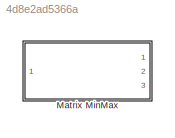
MODEL slx_4d8e2ad5366a
KIND library
CONFIG AbsTol = auto
CONFIG FixedStep = auto
CONFIG MaxStep = auto
CONFIG MinStep = auto
CONFIG RelTol = 1e-3
CONFIG SampleTimeConstraint = Unconstrained
CONFIG Solver = ode45
CONFIG SolverMode = Auto
CONFIG SolverName = ode45
CONFIG StartTime = 0.0
CONFIG StopTime = 10.0
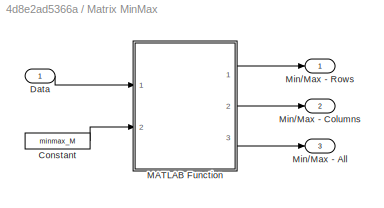
BLOCK [SubSystem] Matrix MinMax
  Ports = [1, 3]
  RequestExecContextInheritance = off
BLOCK [Constant] Matrix MinMax/Constant
  Value = minmax_M
BLOCK [Inport] Matrix MinMax/Data
  IconDisplay = Port number
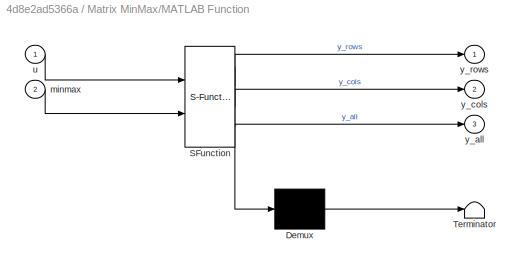
BLOCK [SubSystem] Matrix MinMax/MATLAB Function
  ErrorFcn = Stateflow.Translate.translate
  PermitHierarchicalResolution = ExplicitOnly
  Ports = [2, 3]
  RequestExecContextInheritance = off
  SFBlockType = MATLAB Function
  TreatAsAtomicUnit = on
BLOCK [Demux] Matrix MinMax/MATLAB Function/ Demux 
  Outputs = 1
  Ports = [1, 1]
BLOCK [S-Function] Matrix MinMax/MATLAB Function/ SFunction 
  EnableBusSupport = on
  FunctionName = sf_sfun
  PortCounts = [2 4]
  Ports = [2, 4]
  Tag = Stateflow S-Function lib_GenTools_MinMax 2
BLOCK [Terminator] Matrix MinMax/MATLAB Function/ Terminator 
BLOCK [Inport] Matrix MinMax/MATLAB Function/minmax
  IconDisplay = Port number
  Port = 2
BLOCK [Inport] Matrix MinMax/MATLAB Function/u
  IconDisplay = Port number
BLOCK [Outport] Matrix MinMax/MATLAB Function/y_all
  IconDisplay = Port number
  Port = 3
BLOCK [Outport] Matrix MinMax/MATLAB Function/y_cols
  IconDisplay = Port number
  Port = 2
BLOCK [Outport] Matrix MinMax/MATLAB Function/y_rows
  IconDisplay = Port number
BLOCK [Outport] Matrix MinMax/Min//Max - All
  IconDisplay = Port number
  Port = 3
BLOCK [Outport] Matrix MinMax/Min//Max - Columns
  IconDisplay = Port number
  Port = 2
BLOCK [Outport] Matrix MinMax/Min//Max - Rows
  IconDisplay = Port number
CHART Matrix MinMax/MATLAB Function states=1 transitions=1
  STATE_LABEL 'eML_blk_kernel()'
  STATE_LABEL 'SCRIPT:\nfunction [y_rows, y_cols, y_all] = minmax_mat(u,minmax)\n%#codegen\n\n[n,m] = size(u);\n\n%min/max rows\ny_rows = zeros(n,1);\nfor i = 1:n\n    if minmax == 1\n        y_rows(i) = min(u(i,:));\n    else\n        y_rows(i) = max(u(i,:));\n    end\nend\n\n%min/max columns\ny_cols = zeros(1,m);\nfor j = 1:m\n    if minmax == 1\n        y_cols(j) = min(u(:,j));\n    else\n        y_cols(j) = max(u(:,j));\n    end\ne...<+97ch>'
